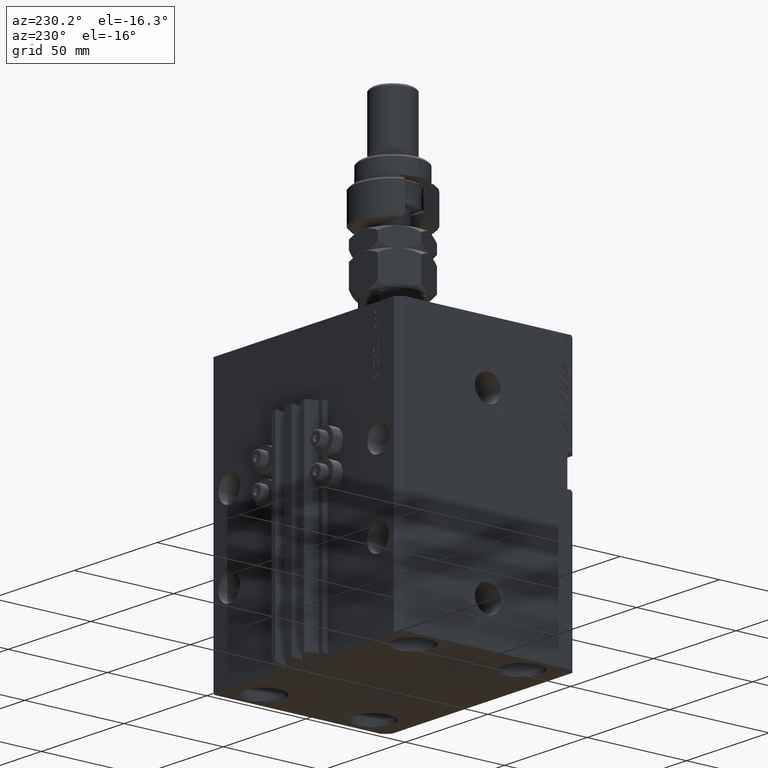
[diagram: clean part render]
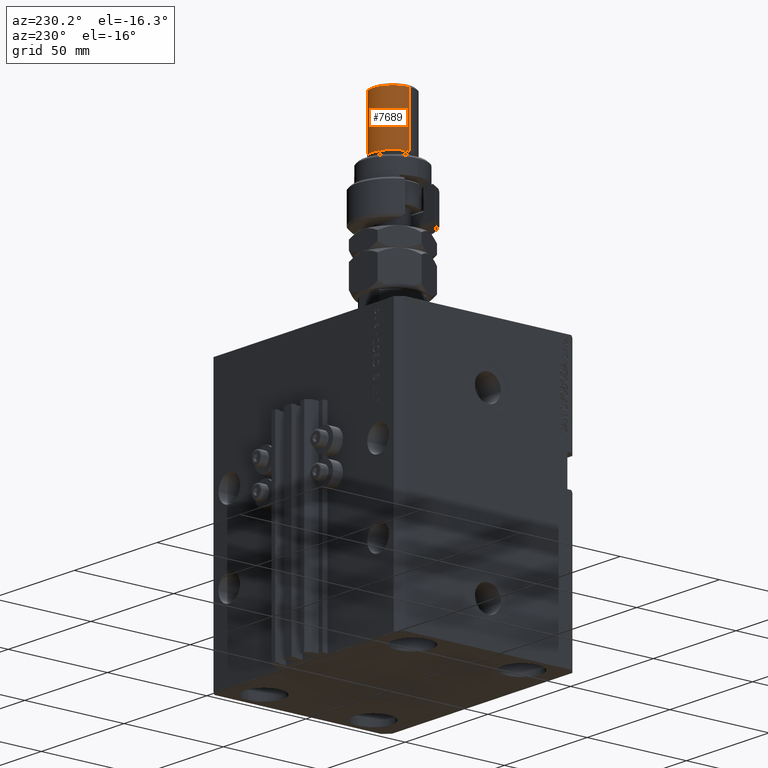
[diagram: same view with one face highlighted and labeled with its STEP entity id]
A machine part, auxiliary view. The second image highlights one B-rep face of the part: STEP entity #7689.
In plain terms, the highlighted cylindrical surface (edge-blend (fillet) strip) has radius 10 mm, axis along (-0, -0, -1).
Its self-contained STEP definition (entity closure, byte-faithful):
#999 = CIRCLE ( 'NONE', #8619, 10.00000000000000000 ) ;
#4744 = CARTESIAN_POINT ( 'NONE',  ( 10.00000000000000000, 1.224646799147353256E-15, 56.00000000000000711 ) ) ;
#7689 = ADVANCED_FACE ( 'NONE', ( #33836 ), #8866, .T. ) ;
#8389 = VERTEX_POINT ( 'NONE', #13442 ) ;
#8464 = ORIENTED_EDGE ( 'NONE', *, *, #9913, .T. ) ;
#8619 = AXIS2_PLACEMENT_3D ( 'NONE', #42896, #46611, #43685 ) ;
#8866 = CYLINDRICAL_SURFACE ( 'NONE', #35286, 10.00000000000000000 ) ;
#9473 = VECTOR ( 'NONE', #14209, 1000.000000000000000 ) ;
#9810 = ORIENTED_EDGE ( 'NONE', *, *, #41473, .F. ) ;
#9913 = EDGE_CURVE ( 'NONE', #48183, #36661, #32808, .T. ) ;
#10005 = EDGE_LOOP ( 'NONE', ( #14056, #36008, #8464, #9810 ) ) ;
#12684 = CARTESIAN_POINT ( 'NONE',  ( 10.00000000000000000, 1.224646799147353256E-15, 54.99999999999998579 ) ) ;
#13442 = CARTESIAN_POINT ( 'NONE',  ( -10.00000000000000000, 0.000000000000000000, 54.99999999999998579 ) ) ;
#14056 = ORIENTED_EDGE ( 'NONE', *, *, #15346, .T. ) ;
#14209 = DIRECTION ( 'NONE',  ( -0.000000000000000000, -0.000000000000000000, -1.000000000000000000 ) ) ;
#15346 = EDGE_CURVE ( 'NONE', #8389, #46529, #999, .T. ) ;
#16260 = DIRECTION ( 'NONE',  ( -0.000000000000000000, -0.000000000000000000, 1.000000000000000000 ) ) ;
#21216 = DIRECTION ( 'NONE',  ( -0.000000000000000000, -0.000000000000000000, -1.000000000000000000 ) ) ;
#21941 = CARTESIAN_POINT ( 'NONE',  ( -10.00000000000000000, 0.000000000000000000, 56.00000000000000711 ) ) ;
#32808 = CIRCLE ( 'NONE', #39608, 10.00000000000000000 ) ;
#33580 = DIRECTION ( 'NONE',  ( -1.000000000000000000, 0.000000000000000000, 0.000000000000000000 ) ) ;
#33836 = FACE_OUTER_BOUND ( 'NONE', #10005, .T. ) ;
#34099 = DIRECTION ( 'NONE',  ( -0.000000000000000000, -0.000000000000000000, -1.000000000000000000 ) ) ;
#34365 = CARTESIAN_POINT ( 'NONE',  ( 0.000000000000000000, 0.000000000000000000, 56.00000000000000711 ) ) ;
#35286 = AXIS2_PLACEMENT_3D ( 'NONE', #34365, #34099, #33580 ) ;
#36008 = ORIENTED_EDGE ( 'NONE', *, *, #37853, .T. ) ;
#36661 = VERTEX_POINT ( 'NONE', #43269 ) ;
#37853 = EDGE_CURVE ( 'NONE', #46529, #48183, #41152, .T. ) ;
#39608 = AXIS2_PLACEMENT_3D ( 'NONE', #47933, #16260, #39938 ) ;
#39938 = DIRECTION ( 'NONE',  ( 1.000000000000000000, 0.000000000000000000, 0.000000000000000000 ) ) ;
#41152 = LINE ( 'NONE', #4744, #51932 ) ;
#41473 = EDGE_CURVE ( 'NONE', #8389, #36661, #46381, .T. ) ;
#42896 = CARTESIAN_POINT ( 'NONE',  ( 0.000000000000000000, 0.000000000000000000, 54.99999999999998579 ) ) ;
#43269 = CARTESIAN_POINT ( 'NONE',  ( -10.00000000000000000, 0.000000000000000000, 29.00000000000000711 ) ) ;
#43685 = DIRECTION ( 'NONE',  ( 1.000000000000000000, 0.000000000000000000, 0.000000000000000000 ) ) ;
#46381 = LINE ( 'NONE', #21941, #9473 ) ;
#46529 = VERTEX_POINT ( 'NONE', #12684 ) ;
#46611 = DIRECTION ( 'NONE',  ( 0.000000000000000000, 0.000000000000000000, -1.000000000000000000 ) ) ;
#47933 = CARTESIAN_POINT ( 'NONE',  ( 0.000000000000000000, 0.000000000000000000, 29.00000000000000711 ) ) ;
#48183 = VERTEX_POINT ( 'NONE', #52138 ) ;
#51932 = VECTOR ( 'NONE', #21216, 1000.000000000000000 ) ;
#52138 = CARTESIAN_POINT ( 'NONE',  ( 10.00000000000000000, 1.224646799147353256E-15, 29.00000000000000711 ) ) ;